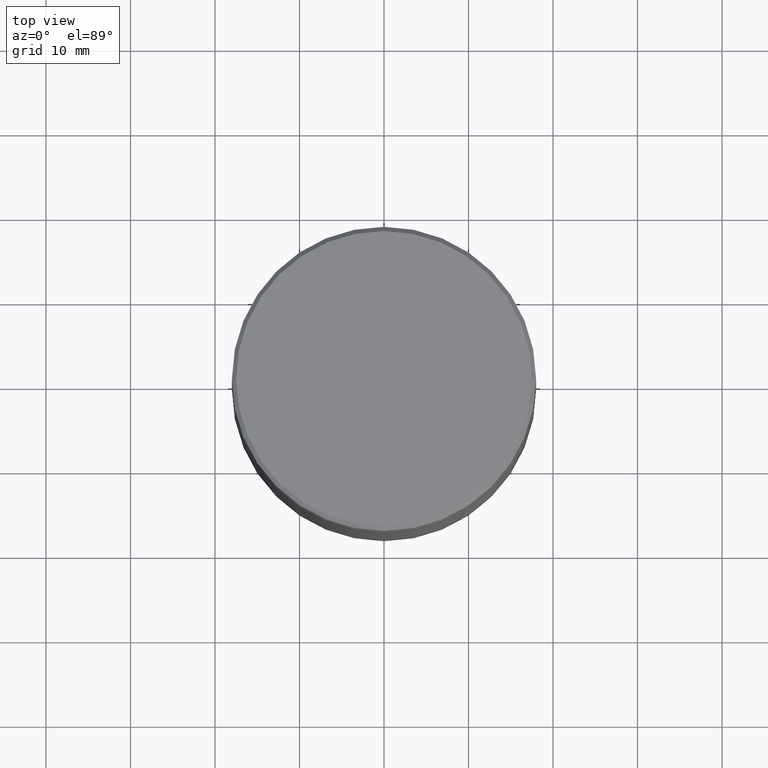
[diagram: clean part render]
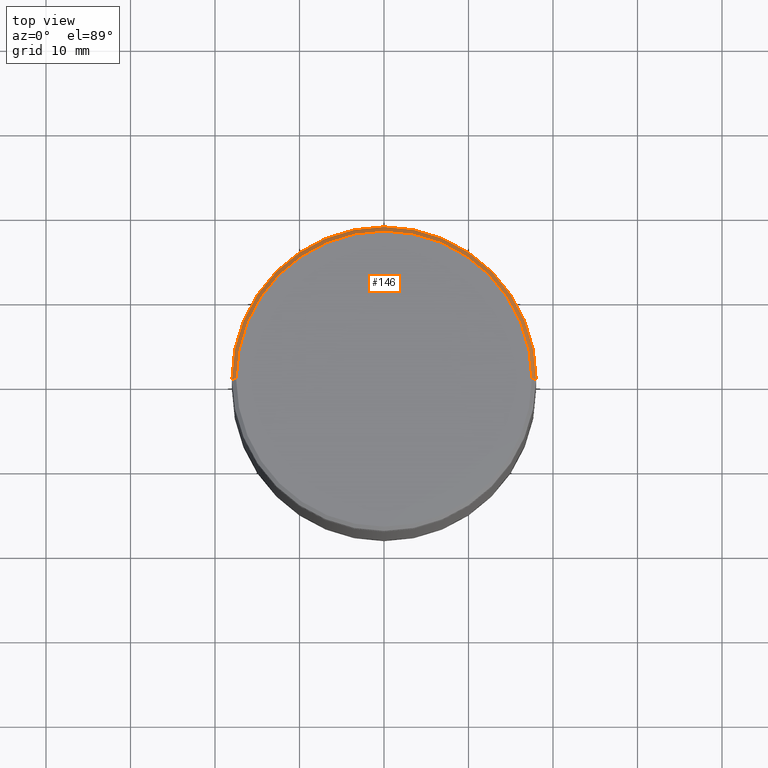
[diagram: same view with one face highlighted and labeled with its STEP entity id]
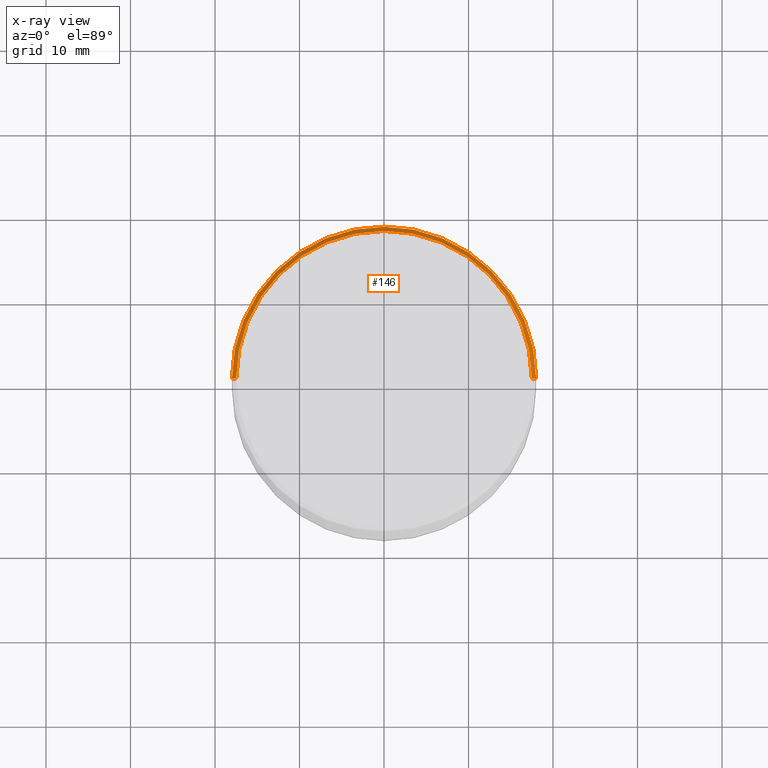
[diagram: x-ray of the same camera — body ghosted, the highlighted face saturated]
A machine part, top view. The second image highlights one B-rep face of the part: STEP entity #146.
The next image is the same camera in x-ray: the body ghosted, the highlighted face saturated — about 0% of this face is hidden behind the body in this view.
In plain terms, the highlighted conical surface has half-angle 45 deg.
Its self-contained STEP definition (entity closure, byte-faithful):
#6 = ORIENTED_EDGE ( 'NONE', *, *, #153, .F. ) ;
#29 = CONICAL_SURFACE ( 'NONE', #231, 17.49999999999998934, 0.7853981633974412846 ) ;
#36 = LINE ( 'NONE', #468, #105 ) ;
#70 = FACE_OUTER_BOUND ( 'NONE', #330, .T. ) ;
#76 = DIRECTION ( 'NONE',  ( 1.000000000000000000, 0.000000000000000000, 0.000000000000000000 ) ) ;
#92 = CARTESIAN_POINT ( 'NONE',  ( 0.000000000000000000, 0.000000000000000000, -0.5000000000000177636 ) ) ;
#98 = LINE ( 'NONE', #493, #264 ) ;
#99 = CARTESIAN_POINT ( 'NONE',  ( -17.49999999999998934, 0.000000000000000000, 0.000000000000000000 ) ) ;
#100 = VERTEX_POINT ( 'NONE', #99 ) ;
#105 = VECTOR ( 'NONE', #160, 999.9999999999998863 ) ;
#135 = VERTEX_POINT ( 'NONE', #343 ) ;
#144 = CARTESIAN_POINT ( 'NONE',  ( 17.49999999999998934, 2.173748068486550852E-15, 0.000000000000000000 ) ) ;
#146 = ADVANCED_FACE ( 'NONE', ( #70 ), #29, .T. ) ;
#149 = AXIS2_PLACEMENT_3D ( 'NONE', #92, #224, #410 ) ;
#153 = EDGE_CURVE ( 'NONE', #175, #135, #392, .T. ) ;
#160 = DIRECTION ( 'NONE',  ( -0.7071067811865425767, 0.000000000000000000, -0.7071067811865525687 ) ) ;
#163 = CARTESIAN_POINT ( 'NONE',  ( 0.000000000000000000, 0.000000000000000000, 0.000000000000000000 ) ) ;
#168 = VERTEX_POINT ( 'NONE', #144 ) ;
#175 = VERTEX_POINT ( 'NONE', #438 ) ;
#176 = ORIENTED_EDGE ( 'NONE', *, *, #481, .F. ) ;
#191 = EDGE_CURVE ( 'NONE', #168, #135, #98, .T. ) ;
#215 = DIRECTION ( 'NONE',  ( -1.000000000000000000, 0.000000000000000000, 0.000000000000000000 ) ) ;
#224 = DIRECTION ( 'NONE',  ( 0.000000000000000000, 0.000000000000000000, -1.000000000000000000 ) ) ;
#231 = AXIS2_PLACEMENT_3D ( 'NONE', #163, #246, #215 ) ;
#246 = DIRECTION ( 'NONE',  ( 0.000000000000000000, 0.000000000000000000, -1.000000000000000000 ) ) ;
#264 = VECTOR ( 'NONE', #487, 999.9999999999998863 ) ;
#330 = EDGE_LOOP ( 'NONE', ( #540, #338, #6, #176 ) ) ;
#338 = ORIENTED_EDGE ( 'NONE', *, *, #191, .T. ) ;
#343 = CARTESIAN_POINT ( 'NONE',  ( 18.00000000000000000, 0.000000000000000000, -0.5000000000000177636 ) ) ;
#392 = CIRCLE ( 'NONE', #149, 18.00000000000000000 ) ;
#410 = DIRECTION ( 'NONE',  ( 1.000000000000000000, 0.000000000000000000, 0.000000000000000000 ) ) ;
#438 = CARTESIAN_POINT ( 'NONE',  ( -18.00000000000000000, 2.204364238465235428E-15, -0.5000000000000177636 ) ) ;
#468 = CARTESIAN_POINT ( 'NONE',  ( -17.49999999999998934, 0.000000000000000000, 0.000000000000000000 ) ) ;
#472 = DIRECTION ( 'NONE',  ( -0.000000000000000000, -0.000000000000000000, 1.000000000000000000 ) ) ;
#475 = AXIS2_PLACEMENT_3D ( 'NONE', #476, #472, #76 ) ;
#476 = CARTESIAN_POINT ( 'NONE',  ( 0.000000000000000000, 0.000000000000000000, 0.000000000000000000 ) ) ;
#481 = EDGE_CURVE ( 'NONE', #100, #175, #36, .T. ) ;
#487 = DIRECTION ( 'NONE',  ( 0.7071067811865425767, 8.659560562354873694E-17, -0.7071067811865525687 ) ) ;
#489 = EDGE_CURVE ( 'NONE', #168, #100, #558, .T. ) ;
#493 = CARTESIAN_POINT ( 'NONE',  ( 17.49999999999998934, 2.143131898507866276E-15, 0.000000000000000000 ) ) ;
#540 = ORIENTED_EDGE ( 'NONE', *, *, #489, .F. ) ;
#558 = CIRCLE ( 'NONE', #475, 17.49999999999998934 ) ;